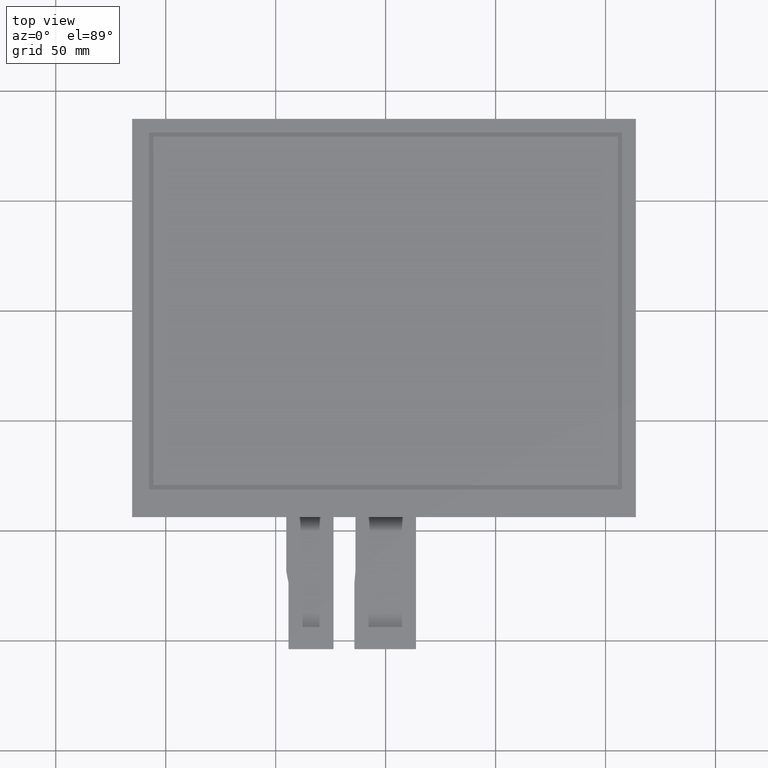
[diagram: clean part render]
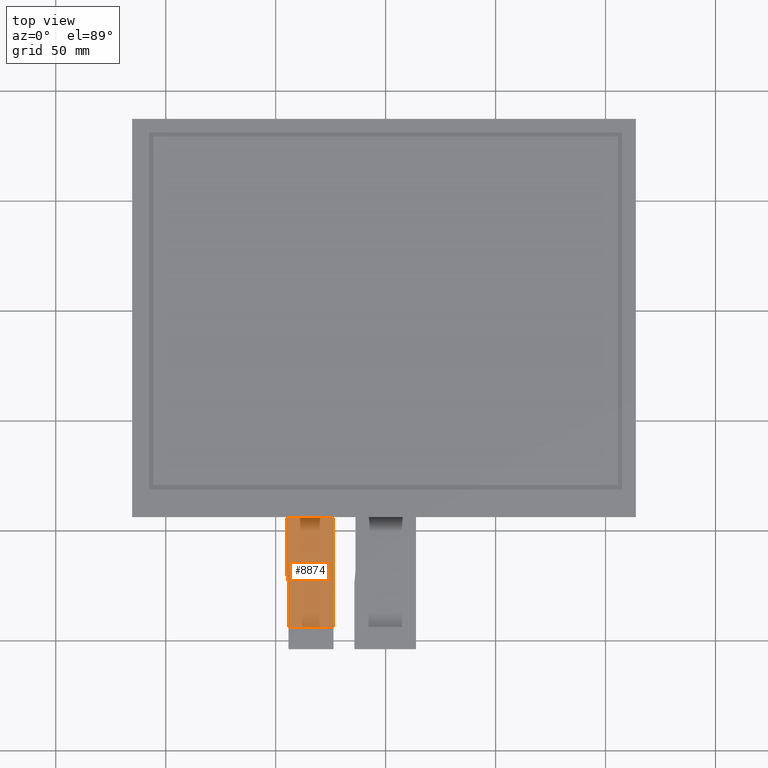
[diagram: same view with one face highlighted and labeled with its STEP entity id]
A machine part, top view. The second image highlights one B-rep face of the part: STEP entity #8874.
In plain terms, the highlighted planar face has unit normal (0, 0, 1).
Its self-contained STEP definition (entity closure, byte-faithful):
#536=PLANE('',#9324);
#958=FACE_OUTER_BOUND('',#1380,.T.);
#1380=EDGE_LOOP('',(#8379,#8380,#8381,#8382,#8383,#8384));
#2577=LINE('',#13816,#3817);
#2588=LINE('',#13838,#3828);
#2598=LINE('',#13859,#3838);
#2601=LINE('',#13863,#3841);
#2603=LINE('',#13867,#3843);
#2604=LINE('',#13869,#3844);
#3817=VECTOR('',#11321,10.);
#3828=VECTOR('',#11342,10.);
#3838=VECTOR('',#11362,10.);
#3841=VECTOR('',#11367,10.);
#3843=VECTOR('',#11371,10.);
#3844=VECTOR('',#11374,10.);
#4682=VERTEX_POINT('',#13813);
#4683=VERTEX_POINT('',#13815);
#4689=VERTEX_POINT('',#13837);
#4694=VERTEX_POINT('',#13857);
#4695=VERTEX_POINT('',#13858);
#4696=VERTEX_POINT('',#13865);
#5905=EDGE_CURVE('',#4683,#4682,#2577,.T.);
#5916=EDGE_CURVE('',#4682,#4689,#2588,.T.);
#5926=EDGE_CURVE('',#4694,#4695,#2598,.T.);
#5929=EDGE_CURVE('',#4695,#4683,#2601,.T.);
#5931=EDGE_CURVE('',#4689,#4696,#2603,.T.);
#5932=EDGE_CURVE('',#4694,#4696,#2604,.T.);
#8379=ORIENTED_EDGE('',*,*,#5916,.T.);
#8380=ORIENTED_EDGE('',*,*,#5931,.T.);
#8381=ORIENTED_EDGE('',*,*,#5932,.F.);
#8382=ORIENTED_EDGE('',*,*,#5926,.T.);
#8383=ORIENTED_EDGE('',*,*,#5929,.T.);
#8384=ORIENTED_EDGE('',*,*,#5905,.T.);
#8874=ADVANCED_FACE('',(#958),#536,.T.);
#9324=AXIS2_PLACEMENT_3D('',#13868,#11372,#11373);
#11321=DIRECTION('',(2.93418704889371E-16,-1.,0.));
#11342=DIRECTION('',(1.,0.,0.));
#11362=DIRECTION('',(0.,-1.,0.));
#11367=DIRECTION('',(0.190808995376545,-0.981627183447664,0.));
#11371=DIRECTION('',(-5.18104078158406E-16,1.,0.));
#11372=DIRECTION('center_axis',(0.,0.,1.));
#11373=DIRECTION('ref_axis',(1.,0.,0.));
#11374=DIRECTION('',(1.,1.55072618018354E-16,0.));
#13813=CARTESIAN_POINT('',(-44.2,-143.8,-1.1));
#13815=CARTESIAN_POINT('',(-44.2,-123.53,-1.1));
#13816=CARTESIAN_POINT('',(-44.2,-123.53,-1.1));
#13837=CARTESIAN_POINT('',(-23.7,-143.8,-1.1));
#13838=CARTESIAN_POINT('',(-29.075,-143.8,-1.1));
#13857=CARTESIAN_POINT('',(-45.2,-93.8,-1.1));
#13858=CARTESIAN_POINT('',(-45.2,-118.38544598403,-1.1));
#13859=CARTESIAN_POINT('',(-45.2,-93.8,-1.1));
#13863=CARTESIAN_POINT('',(-45.2,-118.38544598403,-1.1));
#13865=CARTESIAN_POINT('',(-23.7,-93.8,-1.1));
#13867=CARTESIAN_POINT('',(-23.7,-153.8,-1.1));
#13868=CARTESIAN_POINT('Origin',(-34.45,-123.8,-1.1));
#13869=CARTESIAN_POINT('',(39.675,-93.8,-1.1));